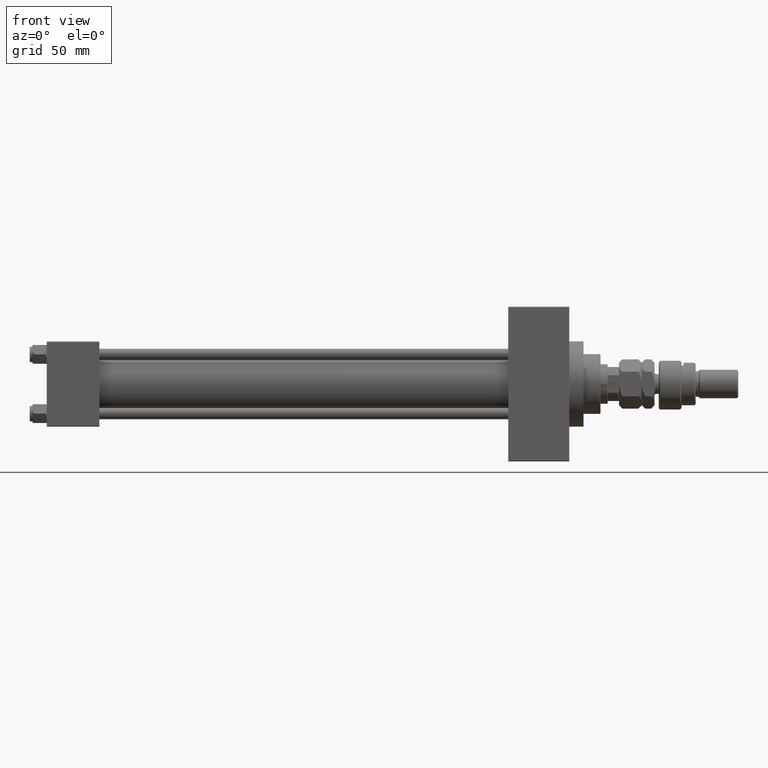
[diagram: clean part render]
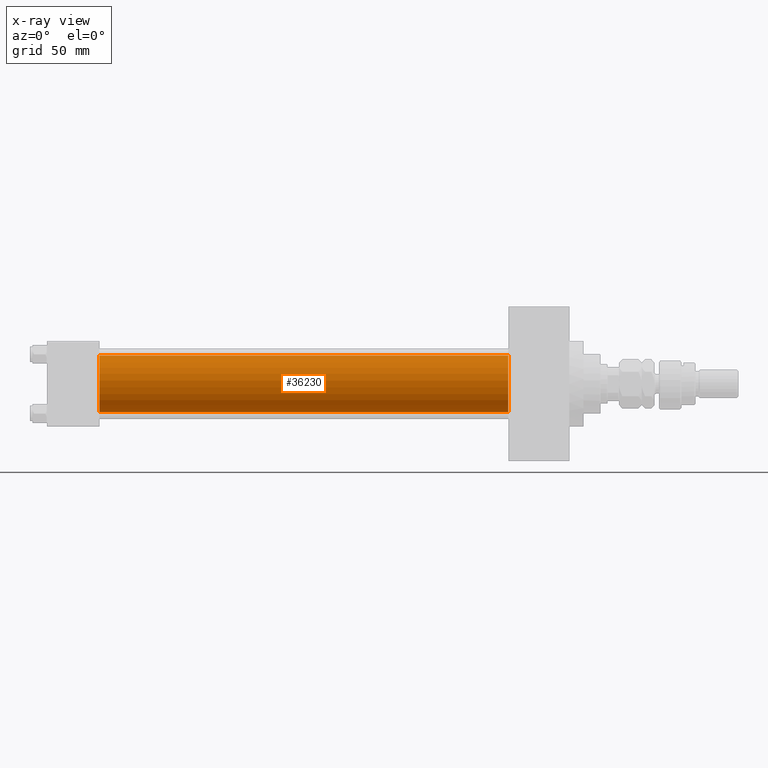
[diagram: x-ray — body ghosted, one internal face saturated and labeled with its STEP entity id]
A machine part, front view, then the same camera in x-ray: the body is ghosted and one INTERNAL B-rep face — a face not visible from any outside direction — is saturated and labeled: STEP entity #36230.
In plain terms, the highlighted cylindrical surface (edge-blend (fillet) strip) has radius 20 mm, axis along (-1, -0, -0).
Its self-contained STEP definition (entity closure, byte-faithful):
#2968 = CARTESIAN_POINT ( 'NONE',  ( 37.00000000000000000, -2.602085213965210642E-15, 0.000000000000000000 ) ) ;
#3418 = DIRECTION ( 'NONE',  ( 0.000000000000000000, 0.000000000000000000, 1.000000000000000000 ) ) ;
#3503 = DIRECTION ( 'NONE',  ( 1.000000000000000000, 0.000000000000000000, 0.000000000000000000 ) ) ;
#3867 = EDGE_CURVE ( 'NONE', #26834, #17979, #52071, .T. ) ;
#4569 = EDGE_CURVE ( 'NONE', #26902, #17979, #40885, .T. ) ;
#4654 = AXIS2_PLACEMENT_3D ( 'NONE', #2968, #3503, #51219 ) ;
#5147 = ORIENTED_EDGE ( 'NONE', *, *, #25410, .T. ) ;
#5280 = CARTESIAN_POINT ( 'NONE',  ( 324.9999999999999432, -2.602085213965210642E-15, 20.00000000000000000 ) ) ;
#7142 = CIRCLE ( 'NONE', #25754, 20.00000000000000000 ) ;
#7224 = CARTESIAN_POINT ( 'NONE',  ( 324.9999999999999432, -2.602085213965210642E-15, 0.000000000000000000 ) ) ;
#8929 = ORIENTED_EDGE ( 'NONE', *, *, #9712, .F. ) ;
#9398 = ORIENTED_EDGE ( 'NONE', *, *, #3867, .F. ) ;
#9712 = EDGE_CURVE ( 'NONE', #48832, #26834, #42732, .T. ) ;
#16994 = CARTESIAN_POINT ( 'NONE',  ( 37.00000000000000000, -1.527916156705042519E-16, -20.00000000000000000 ) ) ;
#17979 = VERTEX_POINT ( 'NONE', #16994 ) ;
#18797 = FACE_OUTER_BOUND ( 'NONE', #20879, .T. ) ;
#19141 = CARTESIAN_POINT ( 'NONE',  ( 324.9999999999999432, -2.602085213965210642E-15, 20.00000000000000000 ) ) ;
#19941 = DIRECTION ( 'NONE',  ( 1.000000000000000000, 0.000000000000000000, 0.000000000000000000 ) ) ;
#20879 = EDGE_LOOP ( 'NONE', ( #5147, #48702, #9398, #8929 ) ) ;
#21975 = CARTESIAN_POINT ( 'NONE',  ( 37.00000000000000000, -2.602085213965210642E-15, 20.00000000000000000 ) ) ;
#23912 = DIRECTION ( 'NONE',  ( 0.000000000000000000, 0.000000000000000000, -1.000000000000000000 ) ) ;
#25410 = EDGE_CURVE ( 'NONE', #48832, #26902, #7142, .T. ) ;
#25754 = AXIS2_PLACEMENT_3D ( 'NONE', #7224, #19941, #23912 ) ;
#26834 = VERTEX_POINT ( 'NONE', #21975 ) ;
#26891 = VECTOR ( 'NONE', #47755, 1000.000000000000000 ) ;
#26902 = VERTEX_POINT ( 'NONE', #52431 ) ;
#26920 = AXIS2_PLACEMENT_3D ( 'NONE', #39736, #27534, #3418 ) ;
#27534 = DIRECTION ( 'NONE',  ( -1.000000000000000000, -0.000000000000000000, -0.000000000000000000 ) ) ;
#32937 = DIRECTION ( 'NONE',  ( -1.000000000000000000, -0.000000000000000000, -0.000000000000000000 ) ) ;
#36230 = ADVANCED_FACE ( 'NONE', ( #18797 ), #47686, .F. ) ;
#39736 = CARTESIAN_POINT ( 'NONE',  ( 324.9999999999999432, -2.602085213965210642E-15, 0.000000000000000000 ) ) ;
#40885 = LINE ( 'NONE', #48056, #41095 ) ;
#41095 = VECTOR ( 'NONE', #32937, 1000.000000000000000 ) ;
#42732 = LINE ( 'NONE', #19141, #26891 ) ;
#47686 = CYLINDRICAL_SURFACE ( 'NONE', #26920, 20.00000000000000000 ) ;
#47755 = DIRECTION ( 'NONE',  ( -1.000000000000000000, -0.000000000000000000, -0.000000000000000000 ) ) ;
#48056 = CARTESIAN_POINT ( 'NONE',  ( 324.9999999999999432, -1.527916156705042519E-16, -20.00000000000000000 ) ) ;
#48702 = ORIENTED_EDGE ( 'NONE', *, *, #4569, .T. ) ;
#48832 = VERTEX_POINT ( 'NONE', #5280 ) ;
#51219 = DIRECTION ( 'NONE',  ( 0.000000000000000000, 0.000000000000000000, -1.000000000000000000 ) ) ;
#52071 = CIRCLE ( 'NONE', #4654, 20.00000000000000000 ) ;
#52431 = CARTESIAN_POINT ( 'NONE',  ( 324.9999999999999432, -1.527916156705042519E-16, -20.00000000000000000 ) ) ;